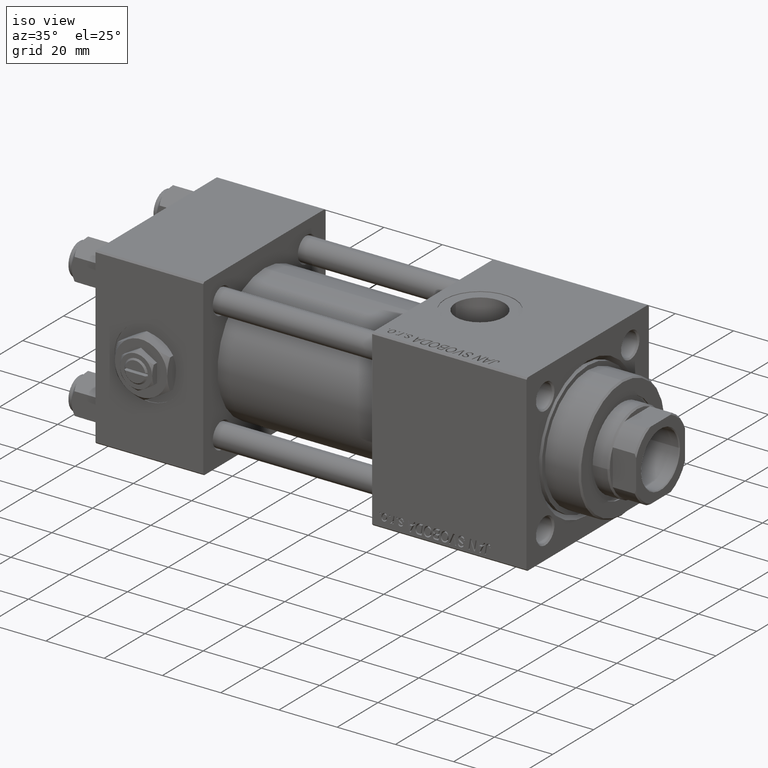
[diagram: clean part render]
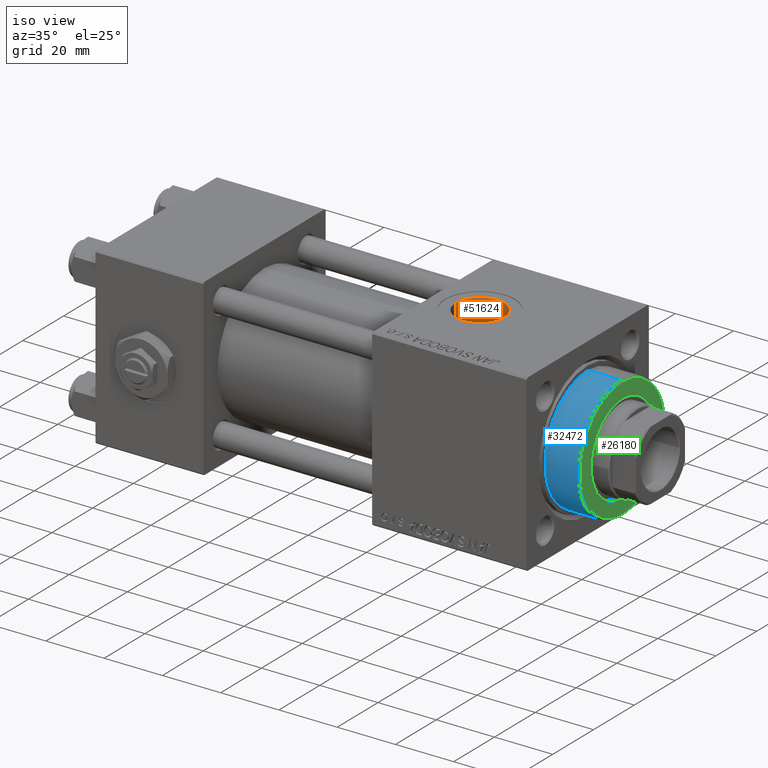
[diagram: same view with three faces highlighted in distinct colors, each labeled with its STEP entity id]
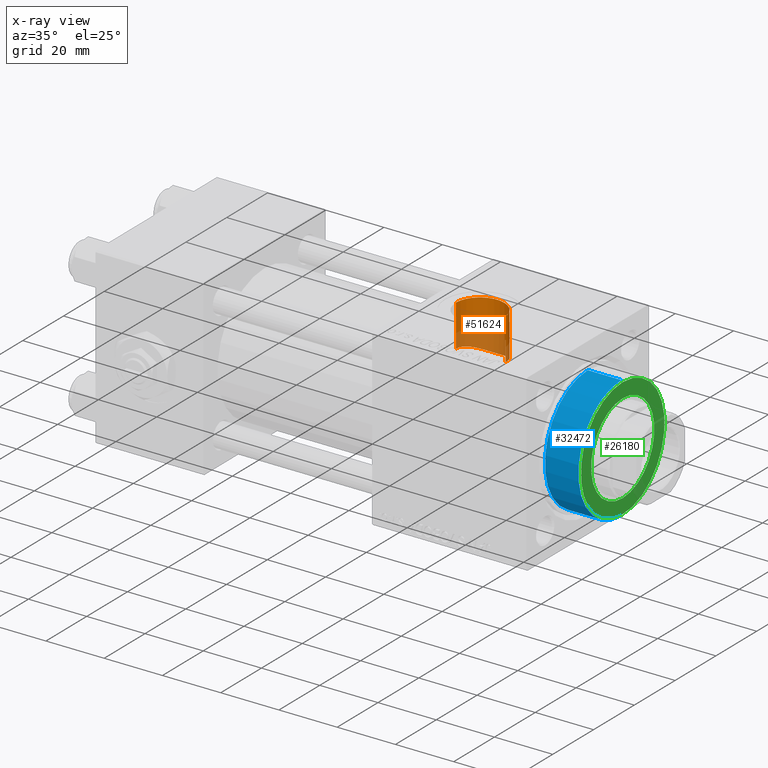
[diagram: x-ray of the same camera — body ghosted, the three highlighted faces saturated]
A machine part, iso view with three faces highlighted in distinct colors.
The next image is the same camera in x-ray (body ghosted, the three faces saturated) — at least one of them is partly hidden behind the body in this view.
Their STEP definitions:

[orange] entity #51624 — the highlighted cylindrical surface (edge-blend (fillet) strip) has radius 8.33 mm, axis along (0, 0, -1).
#1282 = CARTESIAN_POINT ( 'NONE',  ( 119.3300000000000125, -2.449316168263869032E-15, 52.79999999999999716 ) ) ;
#1292 = CARTESIAN_POINT ( 'NONE',  ( 113.3101403164748291, 8.007790053772909644, 13.27144766602743609 ) ) ;
#1554 = CARTESIAN_POINT ( 'NONE',  ( 106.3914020546077808, 6.943847275614563941, 13.85860288735606716 ) ) ;
#2073 = CARTESIAN_POINT ( 'NONE',  ( 108.5224199253086539, 7.970776178815770052, 13.29429473676391460 ) ) ;
#2771 = VECTOR ( 'NONE', #17584, 1000.000000000000000 ) ;
#2850 = CARTESIAN_POINT ( 'NONE',  ( 118.5428870207783518, 3.544564506934797521, 15.09123298641111077 ) ) ;
#4138 = VECTOR ( 'NONE', #32958, 1000.000000000000000 ) ;
#5125 = CARTESIAN_POINT ( 'NONE',  ( 119.3300000000000125, -2.449316168263869821E-15, 29.79999999999999716 ) ) ;
#5319 = B_SPLINE_CURVE_WITH_KNOTS ( 'NONE', 3,
 ( #50132, #37528, #38312, #13128, #18105, #25699, #45154, #30163, #10209, #22018, #18366, #38049, #21235, #1554, #49092, #17580, #25171, #13643, #2073, #37268, #33580, #9412, #34107, #29638, #26215, #45669, #9682, #1292, #5742, #17319, #42246, #13380, #21760, #37780, #17837, #49866, #14425, #43288, #50917, #2850, #26994, #15471, #30690, #27258, #7054, #43029 ),
 .UNSPECIFIED., .F., .F.,
 ( 4, 2, 2, 2, 2, 2, 2, 2, 2, 2, 2, 2, 2, 2, 2, 2, 2, 2, 2, 2, 2, 2, 4 ),
 ( 0.02586561750490627698, 0.02667257115183743754, 0.02747952479876859810, 0.02909343209263091923, 0.03070733938649324035, 0.03232124668035556148, 0.03393515397421788260, 0.03474210762114905010, 0.03554906126808020372, 0.03716296856194253179, 0.03796992220887369235, 0.03877687585580485291, 0.04039078314966713240, 0.04119773679659827215, 0.04200469044352941883, 0.04281164409046055164, 0.04361859773739169832, 0.04523250503125397781, 0.04684641232511625730, 0.04846031961897854373, 0.04926727326590967654, 0.05007422691284080241, 0.05168813420670308190 ),
 .UNSPECIFIED. ) ;
#5718 = ORIENTED_EDGE ( 'NONE', *, *, #7715, .T. ) ;
#5742 = CARTESIAN_POINT ( 'NONE',  ( 113.5653903393931046, 7.929573453247115822, 13.31850891624567446 ) ) ;
#6131 = FACE_OUTER_BOUND ( 'NONE', #28160, .T. ) ;
#7054 = CARTESIAN_POINT ( 'NONE',  ( 119.2535736795806400, 1.251879847823932801, 15.45901168942802606 ) ) ;
#7715 = EDGE_CURVE ( 'NONE', #10284, #18931, #5319, .T. ) ;
#9206 = CARTESIAN_POINT ( 'NONE',  ( 102.6700000000000017, 1.898304232322969090E-15, 15.50000000000000000 ) ) ;
#9412 = CARTESIAN_POINT ( 'NONE',  ( 110.0961245563538142, 8.285231283310338313, 13.09988401430630311 ) ) ;
#9682 = CARTESIAN_POINT ( 'NONE',  ( 112.7879913300362773, 8.140303239488185127, 13.19058330274244284 ) ) ;
#10209 = CARTESIAN_POINT ( 'NONE',  ( 103.7382412053277392, 4.114622947877636605, 14.95093430025992198 ) ) ;
#10284 = VERTEX_POINT ( 'NONE', #9206 ) ;
#10490 = AXIS2_PLACEMENT_3D ( 'NONE', #21879, #10611, #49473 ) ;
#10611 = DIRECTION ( 'NONE',  ( 0.000000000000000000, 0.000000000000000000, -1.000000000000000000 ) ) ;
#12279 = ORIENTED_EDGE ( 'NONE', *, *, #33765, .T. ) ;
#13128 = CARTESIAN_POINT ( 'NONE',  ( 102.7353150131716006, 1.075514947314752723, 15.46498077916762703 ) ) ;
#13380 = CARTESIAN_POINT ( 'NONE',  ( 114.7878989153691833, 7.423653917640752553, 13.60720322249609993 ) ) ;
#13643 = CARTESIAN_POINT ( 'NONE',  ( 108.0235363201843626, 7.798107477347283378, 13.39787891672381726 ) ) ;
#14425 = CARTESIAN_POINT ( 'NONE',  ( 117.2636960965466528, 5.515983638965455071, 14.49185263653173905 ) ) ;
#15471 = CARTESIAN_POINT ( 'NONE',  ( 118.8491620312710779, 2.801948762055240127, 15.24674929831629733 ) ) ;
#15999 = CIRCLE ( 'NONE', #47035, 8.330000000000003624 ) ;
#16108 = VECTOR ( 'NONE', #42234, 1000.000000000000000 ) ;
#16955 = CARTESIAN_POINT ( 'NONE',  ( 119.2999999999999829, 0.7063285354565354002, 52.79999999999999716 ) ) ;
#17319 = CARTESIAN_POINT ( 'NONE',  ( 114.0650487448085357, 7.750150897617437806, 13.42370947118256908 ) ) ;
#17580 = CARTESIAN_POINT ( 'NONE',  ( 107.0641356425911823, 7.346187746824277554, 13.64937350183230791 ) ) ;
#17584 = DIRECTION ( 'NONE',  ( 0.000000000000000000, 0.000000000000000000, -1.000000000000000000 ) ) ;
#17837 = CARTESIAN_POINT ( 'NONE',  ( 116.1213706297517092, 6.590259460215649234, 14.03424939317711662 ) ) ;
#18105 = CARTESIAN_POINT ( 'NONE',  ( 102.7748422588737753, 1.345113678925218048, 15.44384467796440674 ) ) ;
#18366 = CARTESIAN_POINT ( 'NONE',  ( 104.6351521567280116, 5.399275359235517158, 14.53490046566677663 ) ) ;
#18931 = VERTEX_POINT ( 'NONE', #46684 ) ;
#20586 = DIRECTION ( 'NONE',  ( -0.000000000000000000, -0.000000000000000000, -1.000000000000000000 ) ) ;
#20588 = CARTESIAN_POINT ( 'NONE',  ( 102.6700000000000017, -3.469446951953613794E-15, 29.79999999999999716 ) ) ;
#20882 = LINE ( 'NONE', #16955, #4138 ) ;
#21100 = VERTEX_POINT ( 'NONE', #40785 ) ;
#21235 = CARTESIAN_POINT ( 'NONE',  ( 105.7567134674389848, 6.493535737546777042, 14.07819411470014082 ) ) ;
#21504 = LINE ( 'NONE', #29907, #2771 ) ;
#21760 = CARTESIAN_POINT ( 'NONE',  ( 115.0228866172802498, 7.298933092229633601, 13.67473780800528793 ) ) ;
#21879 = CARTESIAN_POINT ( 'NONE',  ( 111.0000000000000000, -3.469446951953613794E-15, 52.79999999999999716 ) ) ;
#22018 = CARTESIAN_POINT ( 'NONE',  ( 104.3108638884341275, 4.991865470557748097, 14.68134318030006291 ) ) ;
#23881 = CARTESIAN_POINT ( 'NONE',  ( 119.3300000000000125, 0.2354428451521802246, 22.50000000000000355 ) ) ;
#24642 = CARTESIAN_POINT ( 'NONE',  ( 119.2999999999999829, 0.7063285354565354002, 22.48891060056044466 ) ) ;
#25031 = DIRECTION ( 'NONE',  ( 1.000000000000000000, 0.000000000000000000, 0.000000000000000000 ) ) ;
#25171 = CARTESIAN_POINT ( 'NONE',  ( 107.3002806938655880, 7.468012193495424889, 13.58288275005224577 ) ) ;
#25699 = CARTESIAN_POINT ( 'NONE',  ( 102.9323351773738153, 2.143895289495490797, 15.36035123208332820 ) ) ;
#26215 = CARTESIAN_POINT ( 'NONE',  ( 111.7204179385422833, 8.316316922132166667, 13.08044599360019689 ) ) ;
#26994 = CARTESIAN_POINT ( 'NONE',  ( 118.6535066739792086, 3.299105492354843072, 15.14695296028893168 ) ) ;
#27258 = CARTESIAN_POINT ( 'NONE',  ( 119.1550002228559180, 1.780279521112080543, 15.40614980614638796 ) ) ;
#27523 = CARTESIAN_POINT ( 'NONE',  ( 119.3300000000000125, 2.755455270027974659E-15, 22.50000000000000355 ) ) ;
#27749 = EDGE_CURVE ( 'NONE', #21100, #18931, #20882, .T. ) ;
#27809 = CARTESIAN_POINT ( 'NONE',  ( 119.3200361445783102, 0.4708856903043578401, 22.49630535626710781 ) ) ;
#28160 = EDGE_LOOP ( 'NONE', ( #34523, #29715, #50712, #5718, #34811, #12279 ) ) ;
#29233 = CARTESIAN_POINT ( 'NONE',  ( 111.0000000000000000, -3.469446951953613794E-15, 29.79999999999999716 ) ) ;
#29638 = CARTESIAN_POINT ( 'NONE',  ( 111.1827731937051169, 8.345639263937128405, 13.06143459154865383 ) ) ;
#29715 = ORIENTED_EDGE ( 'NONE', *, *, #31823, .F. ) ;
#29907 = CARTESIAN_POINT ( 'NONE',  ( 102.6700000000000017, -3.469446951953613794E-15, 52.79999999999999716 ) ) ;
#30163 = CARTESIAN_POINT ( 'NONE',  ( 103.4884433949717533, 3.639785051709965913, 15.07496769168806949 ) ) ;
#30541 = VERTEX_POINT ( 'NONE', #5125 ) ;
#30690 = CARTESIAN_POINT ( 'NONE',  ( 118.9347458643765236, 2.549478185781939743, 15.29108801674690810 ) ) ;
#31823 = EDGE_CURVE ( 'NONE', #33112, #30541, #15999, .T. ) ;
#32958 = DIRECTION ( 'NONE',  ( 0.000000000000000000, 0.000000000000000000, -1.000000000000000000 ) ) ;
#33112 = VERTEX_POINT ( 'NONE', #20588 ) ;
#33570 = LINE ( 'NONE', #1282, #16108 ) ;
#33580 = CARTESIAN_POINT ( 'NONE',  ( 109.5605833038423214, 8.209149030830989346, 13.14769526555239132 ) ) ;
#33704 = CYLINDRICAL_SURFACE ( 'NONE', #10490, 8.330000000000003624 ) ;
#33765 = EDGE_CURVE ( 'NONE', #21100, #47685, #36203, .T. ) ;
#34107 = CARTESIAN_POINT ( 'NONE',  ( 110.3699255016521477, 8.310562936261190359, 13.08375847227050315 ) ) ;
#34523 = ORIENTED_EDGE ( 'NONE', *, *, #34675, .F. ) ;
#34675 = EDGE_CURVE ( 'NONE', #30541, #47685, #33570, .T. ) ;
#34811 = ORIENTED_EDGE ( 'NONE', *, *, #27749, .F. ) ;
#36203 = B_SPLINE_CURVE_WITH_KNOTS ( 'NONE', 3,
 ( #24642, #27809, #23881, #36477 ),
 .UNSPECIFIED., .F., .F.,
 ( 4, 4 ),
 ( 0.000000000000000000, 0.0007063285354565328363 ),
 .UNSPECIFIED. ) ;
#36477 = CARTESIAN_POINT ( 'NONE',  ( 119.3300000000000125, 2.755455270027974659E-15, 22.50000000000000355 ) ) ;
#37268 = CARTESIAN_POINT ( 'NONE',  ( 109.2976579557377619, 8.158530844714508845, 13.17929287996982524 ) ) ;
#37528 = CARTESIAN_POINT ( 'NONE',  ( 102.6700000000000301, 0.2692781161559530401, 15.50000000000000178 ) ) ;
#37780 = CARTESIAN_POINT ( 'NONE',  ( 115.7013846757646007, 6.896553212426882240, 13.88449017423041454 ) ) ;
#38049 = CARTESIAN_POINT ( 'NONE',  ( 105.3619139893282863, 6.154303259437239326, 14.23165687271051105 ) ) ;
#38312 = CARTESIAN_POINT ( 'NONE',  ( 102.6830263376666323, 0.5382373393380733839, 15.49298755787482129 ) ) ;
#40785 = CARTESIAN_POINT ( 'NONE',  ( 119.2999999999999829, 0.7063285354565354002, 22.48891060056044466 ) ) ;
#40792 = EDGE_CURVE ( 'NONE', #33112, #10284, #21504, .T. ) ;
#42234 = DIRECTION ( 'NONE',  ( 0.000000000000000000, 0.000000000000000000, -1.000000000000000000 ) ) ;
#42246 = CARTESIAN_POINT ( 'NONE',  ( 114.3094557415238199, 7.648942304453149710, 13.48185071310159877 ) ) ;
#43029 = CARTESIAN_POINT ( 'NONE',  ( 119.2999999999999545, 0.7063285354568809016, 15.48389808801386103 ) ) ;
#43288 = CARTESIAN_POINT ( 'NONE',  ( 117.9017814515971025, 4.693120186999104604, 14.77885283960388918 ) ) ;
#45154 = CARTESIAN_POINT ( 'NONE',  ( 103.0866881673992594, 2.655374492085076366, 15.27912538186902758 ) ) ;
#45669 = CARTESIAN_POINT ( 'NONE',  ( 112.5206788388487524, 8.194464177599192212, 13.15686343614054188 ) ) ;
#46684 = CARTESIAN_POINT ( 'NONE',  ( 119.2999999999999545, 0.7063285354568809016, 15.48389808801386103 ) ) ;
#47035 = AXIS2_PLACEMENT_3D ( 'NONE', #29233, #20586, #25031 ) ;
#47685 = VERTEX_POINT ( 'NONE', #27523 ) ;
#49092 = CARTESIAN_POINT ( 'NONE',  ( 106.6103928475614424, 7.084409057837668833, 13.78705986442869502 ) ) ;
#49473 = DIRECTION ( 'NONE',  ( -1.000000000000000000, 0.000000000000000000, 0.000000000000000000 ) ) ;
#49866 = CARTESIAN_POINT ( 'NONE',  ( 116.9021014551138506, 5.901284207169522844, 14.33759116759386565 ) ) ;
#50132 = CARTESIAN_POINT ( 'NONE',  ( 102.6700000000000017, 1.898304232322969090E-15, 15.50000000000000000 ) ) ;
#50712 = ORIENTED_EDGE ( 'NONE', *, *, #40792, .T. ) ;
#50917 = CARTESIAN_POINT ( 'NONE',  ( 118.1821809494403368, 4.252752687106300833, 14.91311828418755425 ) ) ;
#51624 = ADVANCED_FACE ( 'NONE', ( #6131 ), #33704, .F. ) ;

[blue] entity #32472 — the highlighted cylindrical surface (partial cylindrical patch) has radius 21 mm, axis along (-1, -0, -0).
#343 = ORIENTED_EDGE ( 'NONE', *, *, #24663, .F. ) ;
#662 = EDGE_CURVE ( 'NONE', #29049, #3195, #795, .T. ) ;
#795 = LINE ( 'NONE', #12887, #34518 ) ;
#3195 = VERTEX_POINT ( 'NONE', #22023 ) ;
#8128 = CARTESIAN_POINT ( 'NONE',  ( 0.000000000000000000, 0.000000000000000000, 40.19999999999998863 ) ) ;
#8190 = VECTOR ( 'NONE', #15432, 1000.000000000000000 ) ;
#12887 = CARTESIAN_POINT ( 'NONE',  ( -21.00000000000000000, 0.000000000000000000, 40.70000000000000284 ) ) ;
#13988 = CARTESIAN_POINT ( 'NONE',  ( 0.000000000000000000, 0.000000000000000000, 28.69999999999999929 ) ) ;
#15432 = DIRECTION ( 'NONE',  ( -0.000000000000000000, -0.000000000000000000, -1.000000000000000000 ) ) ;
#15563 = DIRECTION ( 'NONE',  ( -1.000000000000000000, 0.000000000000000000, 0.000000000000000000 ) ) ;
#15842 = ORIENTED_EDGE ( 'NONE', *, *, #29982, .T. ) ;
#16285 = EDGE_CURVE ( 'NONE', #43336, #29049, #19128, .T. ) ;
#19128 = CIRCLE ( 'NONE', #50121, 21.00000000000000000 ) ;
#22023 = CARTESIAN_POINT ( 'NONE',  ( -21.00000000000000000, 0.000000000000000000, 28.69999999999999929 ) ) ;
#22757 = CARTESIAN_POINT ( 'NONE',  ( 21.00000000000000000, 2.571758278209441661E-15, 40.70000000000000284 ) ) ;
#24663 = EDGE_CURVE ( 'NONE', #43336, #33958, #47200, .T. ) ;
#24726 = ORIENTED_EDGE ( 'NONE', *, *, #16285, .T. ) ;
#25150 = AXIS2_PLACEMENT_3D ( 'NONE', #13988, #26034, #30241 ) ;
#26034 = DIRECTION ( 'NONE',  ( 0.000000000000000000, 0.000000000000000000, 1.000000000000000000 ) ) ;
#27571 = ORIENTED_EDGE ( 'NONE', *, *, #662, .T. ) ;
#28886 = DIRECTION ( 'NONE',  ( -0.000000000000000000, -0.000000000000000000, -1.000000000000000000 ) ) ;
#29049 = VERTEX_POINT ( 'NONE', #39706 ) ;
#29982 = EDGE_CURVE ( 'NONE', #3195, #33958, #51154, .T. ) ;
#30241 = DIRECTION ( 'NONE',  ( 1.000000000000000000, 0.000000000000000000, 0.000000000000000000 ) ) ;
#30554 = CARTESIAN_POINT ( 'NONE',  ( 21.00000000000000000, 2.571758278209441661E-15, 40.19999999999998863 ) ) ;
#32472 = ADVANCED_FACE ( 'NONE', ( #38666 ), #43384, .T. ) ;
#33958 = VERTEX_POINT ( 'NONE', #49077 ) ;
#34518 = VECTOR ( 'NONE', #28886, 1000.000000000000000 ) ;
#36153 = AXIS2_PLACEMENT_3D ( 'NONE', #51266, #51016, #15563 ) ;
#38666 = FACE_OUTER_BOUND ( 'NONE', #40499, .T. ) ;
#39706 = CARTESIAN_POINT ( 'NONE',  ( -21.00000000000000000, 0.000000000000000000, 40.19999999999998863 ) ) ;
#40417 = DIRECTION ( 'NONE',  ( 1.000000000000000000, 0.000000000000000000, 0.000000000000000000 ) ) ;
#40499 = EDGE_LOOP ( 'NONE', ( #343, #24726, #27571, #15842 ) ) ;
#43336 = VERTEX_POINT ( 'NONE', #30554 ) ;
#43384 = CYLINDRICAL_SURFACE ( 'NONE', #36153, 21.00000000000000000 ) ;
#44369 = DIRECTION ( 'NONE',  ( 0.000000000000000000, 0.000000000000000000, -1.000000000000000000 ) ) ;
#47200 = LINE ( 'NONE', #22757, #8190 ) ;
#49077 = CARTESIAN_POINT ( 'NONE',  ( 21.00000000000000000, 2.571758278209441661E-15, 28.69999999999999929 ) ) ;
#50121 = AXIS2_PLACEMENT_3D ( 'NONE', #8128, #44369, #40417 ) ;
#51016 = DIRECTION ( 'NONE',  ( -0.000000000000000000, -0.000000000000000000, -1.000000000000000000 ) ) ;
#51154 = CIRCLE ( 'NONE', #25150, 21.00000000000000000 ) ;
#51266 = CARTESIAN_POINT ( 'NONE',  ( 0.000000000000000000, 0.000000000000000000, 40.70000000000000284 ) ) ;

[green] entity #26180 — the highlighted planar face has unit normal (1, 0, 0).
#281 = DIRECTION ( 'NONE',  ( 1.000000000000000000, 0.000000000000000000, 0.000000000000000000 ) ) ;
#1134 = EDGE_LOOP ( 'NONE', ( #9735, #38925 ) ) ;
#4212 = CARTESIAN_POINT ( 'NONE',  ( 0.000000000000000000, 0.000000000000000000, 40.70000000000000284 ) ) ;
#5670 = AXIS2_PLACEMENT_3D ( 'NONE', #28127, #12904, #44933 ) ;
#6116 = AXIS2_PLACEMENT_3D ( 'NONE', #43033, #22286, #11269 ) ;
#6985 = CARTESIAN_POINT ( 'NONE',  ( 0.000000000000000000, 0.000000000000000000, 40.70000000000000284 ) ) ;
#9488 = VERTEX_POINT ( 'NONE', #13403 ) ;
#9735 = ORIENTED_EDGE ( 'NONE', *, *, #20203, .T. ) ;
#10908 = DIRECTION ( 'NONE',  ( 0.000000000000000000, 0.000000000000000000, 1.000000000000000000 ) ) ;
#11269 = DIRECTION ( 'NONE',  ( 1.000000000000000000, 0.000000000000000000, 0.000000000000000000 ) ) ;
#12903 = EDGE_CURVE ( 'NONE', #27023, #9488, #28988, .T. ) ;
#12904 = DIRECTION ( 'NONE',  ( 0.000000000000000000, 0.000000000000000000, 1.000000000000000000 ) ) ;
#13403 = CARTESIAN_POINT ( 'NONE',  ( -20.49999999999999645, 0.000000000000000000, 40.70000000000000284 ) ) ;
#14862 = PLANE ( 'NONE',  #23333 ) ;
#16547 = VERTEX_POINT ( 'NONE', #45076 ) ;
#17629 = ORIENTED_EDGE ( 'NONE', *, *, #49953, .F. ) ;
#18814 = DIRECTION ( 'NONE',  ( 0.000000000000000000, 0.000000000000000000, 1.000000000000000000 ) ) ;
#19541 = CARTESIAN_POINT ( 'NONE',  ( 20.49999999999999645, 2.541142108230757480E-15, 40.70000000000000284 ) ) ;
#20203 = EDGE_CURVE ( 'NONE', #9488, #27023, #51798, .T. ) ;
#22286 = DIRECTION ( 'NONE',  ( 0.000000000000000000, 0.000000000000000000, 1.000000000000000000 ) ) ;
#23196 = ORIENTED_EDGE ( 'NONE', *, *, #40941, .F. ) ;
#23333 = AXIS2_PLACEMENT_3D ( 'NONE', #46894, #10908, #35576 ) ;
#26180 = ADVANCED_FACE ( 'NONE', ( #42931, #31108 ), #14862, .T. ) ;
#27023 = VERTEX_POINT ( 'NONE', #19541 ) ;
#27305 = AXIS2_PLACEMENT_3D ( 'NONE', #6985, #18814, #34825 ) ;
#28127 = CARTESIAN_POINT ( 'NONE',  ( 0.000000000000000000, 0.000000000000000000, 40.70000000000000284 ) ) ;
#28988 = CIRCLE ( 'NONE', #27305, 20.49999999999999645 ) ;
#30439 = CIRCLE ( 'NONE', #6116, 15.50000000000000000 ) ;
#31108 = FACE_OUTER_BOUND ( 'NONE', #1134, .T. ) ;
#33157 = CIRCLE ( 'NONE', #42429, 15.50000000000000000 ) ;
#34825 = DIRECTION ( 'NONE',  ( 1.000000000000000000, 0.000000000000000000, 0.000000000000000000 ) ) ;
#35576 = DIRECTION ( 'NONE',  ( 1.000000000000000000, 0.000000000000000000, -0.000000000000000000 ) ) ;
#38586 = CARTESIAN_POINT ( 'NONE',  ( 15.50000000000000000, 0.000000000000000000, 40.70000000000000284 ) ) ;
#38925 = ORIENTED_EDGE ( 'NONE', *, *, #12903, .T. ) ;
#40288 = EDGE_LOOP ( 'NONE', ( #23196, #17629 ) ) ;
#40941 = EDGE_CURVE ( 'NONE', #42224, #16547, #30439, .T. ) ;
#40952 = DIRECTION ( 'NONE',  ( 0.000000000000000000, 0.000000000000000000, 1.000000000000000000 ) ) ;
#42224 = VERTEX_POINT ( 'NONE', #38586 ) ;
#42429 = AXIS2_PLACEMENT_3D ( 'NONE', #4212, #40952, #281 ) ;
#42931 = FACE_BOUND ( 'NONE', #40288, .T. ) ;
#43033 = CARTESIAN_POINT ( 'NONE',  ( 0.000000000000000000, 0.000000000000000000, 40.70000000000000284 ) ) ;
#44933 = DIRECTION ( 'NONE',  ( 1.000000000000000000, 0.000000000000000000, 0.000000000000000000 ) ) ;
#45076 = CARTESIAN_POINT ( 'NONE',  ( -15.50000000000000000, 1.898202538678397557E-15, 40.70000000000000284 ) ) ;
#46894 = CARTESIAN_POINT ( 'NONE',  ( 0.000000000000000000, 0.000000000000000000, 40.70000000000000284 ) ) ;
#49953 = EDGE_CURVE ( 'NONE', #16547, #42224, #33157, .T. ) ;
#51798 = CIRCLE ( 'NONE', #5670, 20.49999999999999645 ) ;